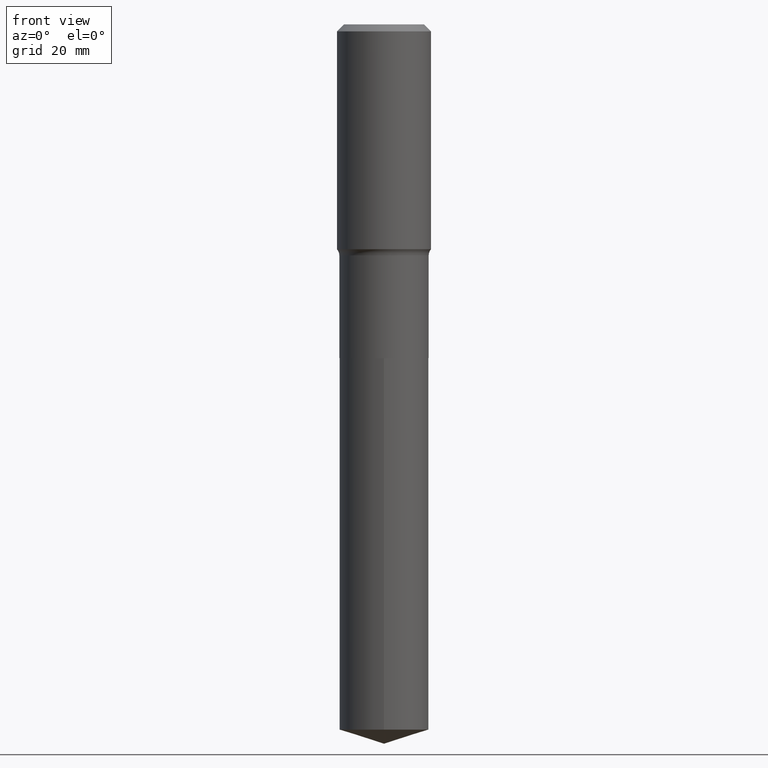
[diagram: clean part render]
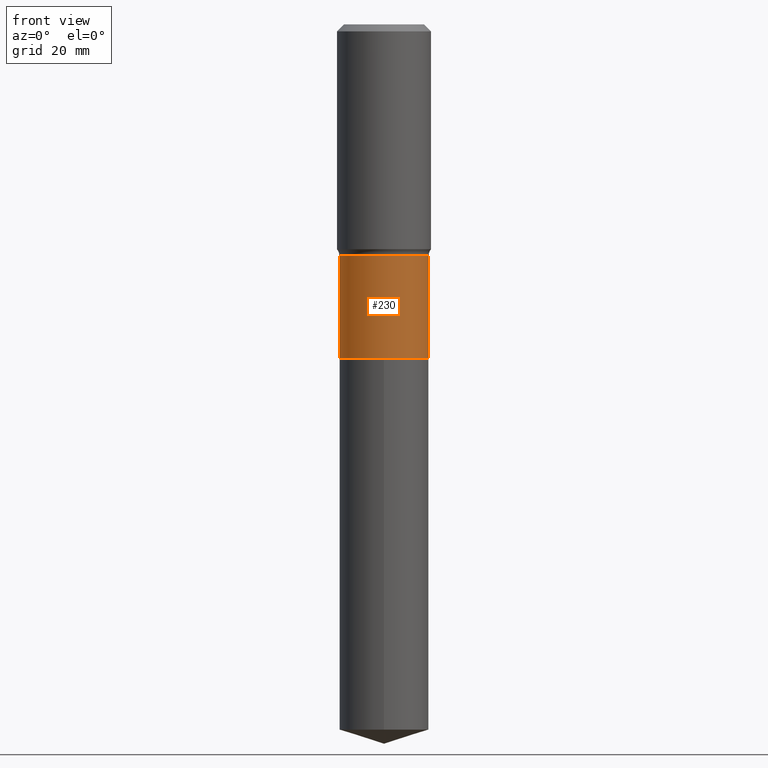
[diagram: same view with one face highlighted and labeled with its STEP entity id]
A machine part, front view. The second image highlights one B-rep face of the part: STEP entity #230.
In plain terms, the highlighted cylindrical surface (partial cylindrical patch) has radius 9.4996 mm, axis along (-0, 0, 1).
Its self-contained STEP definition (entity closure, byte-faithful):
#7 = AXIS2_PLACEMENT_3D ( 'NONE', #421, #197, #308 ) ;
#63 = EDGE_LOOP ( 'NONE', ( #250, #92, #190, #192 ) ) ;
#64 = AXIS2_PLACEMENT_3D ( 'NONE', #137, #362, #212 ) ;
#88 = CARTESIAN_POINT ( 'NONE',  ( 0.3739999999999999436, -2.611628041454663213E-15, 1.823690114147679661E-29 ) ) ;
#92 = ORIENTED_EDGE ( 'NONE', *, *, #240, .T. ) ;
#127 = DIRECTION ( 'NONE',  ( -2.445468806185136877E-29, 3.491481338843145188E-15, 1.000000000000000000 ) ) ;
#137 = CARTESIAN_POINT ( 'NONE',  ( 6.834351672645601242E-29, -9.757642897664937800E-15, -2.794699999999999740 ) ) ;
#160 = CARTESIAN_POINT ( 'NONE',  ( 0.3739999999999998881, -9.367644432116149448E-15, -1.935000000000000053 ) ) ;
#188 = VECTOR ( 'NONE', #127, 39.37007874015748143 ) ;
#190 = ORIENTED_EDGE ( 'NONE', *, *, #361, .T. ) ;
#192 = ORIENTED_EDGE ( 'NONE', *, *, #218, .F. ) ;
#193 = VERTEX_POINT ( 'NONE', #378 ) ;
#195 = CIRCLE ( 'NONE', #64, 0.3739999999999999991 ) ;
#197 = DIRECTION ( 'NONE',  ( -2.445468806185136597E-29, 3.491481338843145583E-15, 1.000000000000000000 ) ) ;
#212 = DIRECTION ( 'NONE',  ( 1.000000000000000000, -6.982962677686265133E-15, 0.000000000000000000 ) ) ;
#218 = EDGE_CURVE ( 'NONE', #193, #224, #222, .T. ) ;
#222 = CIRCLE ( 'NONE', #7, 0.3739999999999998881 ) ;
#224 = VERTEX_POINT ( 'NONE', #160 ) ;
#230 = ADVANCED_FACE ( 'NONE', ( #299 ), #239, .T. ) ;
#239 = CYLINDRICAL_SURFACE ( 'NONE', #480, 0.3739999999999999436 ) ;
#240 = EDGE_CURVE ( 'NONE', #393, #278, #195, .T. ) ;
#250 = ORIENTED_EDGE ( 'NONE', *, *, #478, .F. ) ;
#253 = DIRECTION ( 'NONE',  ( -2.445468806185136877E-29, 3.491481338843145188E-15, 1.000000000000000000 ) ) ;
#278 = VERTEX_POINT ( 'NONE', #287 ) ;
#282 = CARTESIAN_POINT ( 'NONE',  ( 0.000000000000000000, 0.000000000000000000, 0.000000000000000000 ) ) ;
#287 = CARTESIAN_POINT ( 'NONE',  ( 0.3739999999999999991, -1.236927093911960022E-14, -2.794699999999999740 ) ) ;
#299 = FACE_OUTER_BOUND ( 'NONE', #63, .T. ) ;
#303 = VECTOR ( 'NONE', #253, 39.37007874015748143 ) ;
#308 = DIRECTION ( 'NONE',  ( 1.000000000000000000, -6.982962677686267499E-15, 0.000000000000000000 ) ) ;
#317 = DIRECTION ( 'NONE',  ( 1.000000000000000000, -6.982962677686266711E-15, 4.876176775795935793E-29 ) ) ;
#323 = CARTESIAN_POINT ( 'NONE',  ( -0.3739999999999999991, -5.599399812420436934E-15, -2.794699999999999740 ) ) ;
#354 = DIRECTION ( 'NONE',  ( -2.445468806185136597E-29, 3.491481338843145583E-15, 1.000000000000000000 ) ) ;
#361 = EDGE_CURVE ( 'NONE', #278, #224, #428, .T. ) ;
#362 = DIRECTION ( 'NONE',  ( -2.445468806185136597E-29, 3.491481338843145583E-15, 1.000000000000000000 ) ) ;
#372 = LINE ( 'NONE', #482, #303 ) ;
#378 = CARTESIAN_POINT ( 'NONE',  ( -0.3739999999999998881, -5.599399812420438512E-15, -1.935000000000000053 ) ) ;
#393 = VERTEX_POINT ( 'NONE', #323 ) ;
#421 = CARTESIAN_POINT ( 'NONE',  ( 4.731982139968239830E-29, -6.756016390661487024E-15, -1.935000000000000053 ) ) ;
#428 = LINE ( 'NONE', #88, #188 ) ;
#478 = EDGE_CURVE ( 'NONE', #393, #193, #372, .T. ) ;
#480 = AXIS2_PLACEMENT_3D ( 'NONE', #282, #354, #317 ) ;
#482 = CARTESIAN_POINT ( 'NONE',  ( -0.3739999999999999436, 2.657429831742774294E-15, -1.839681723755334340E-29 ) ) ;